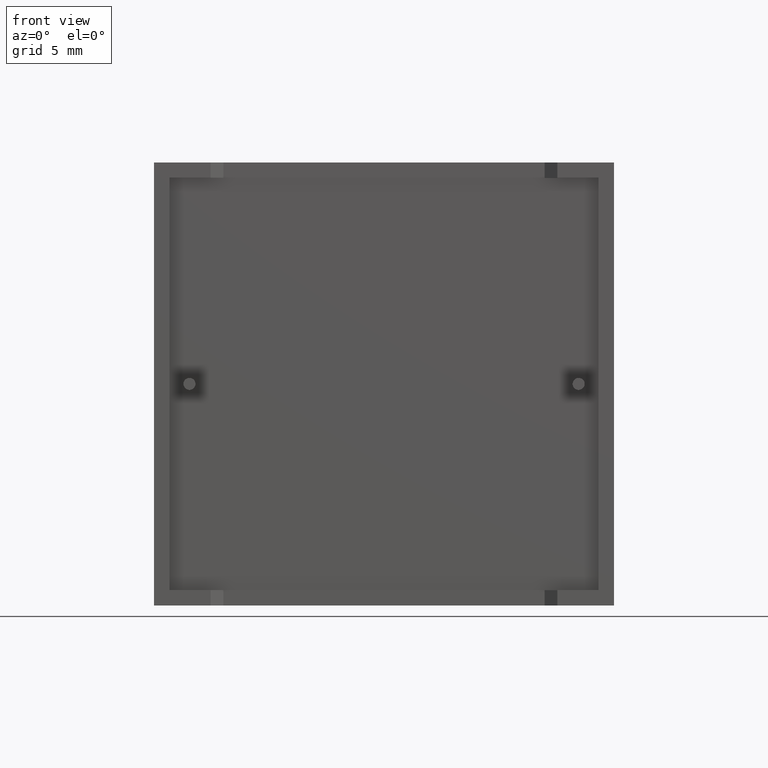
[diagram: clean part render]
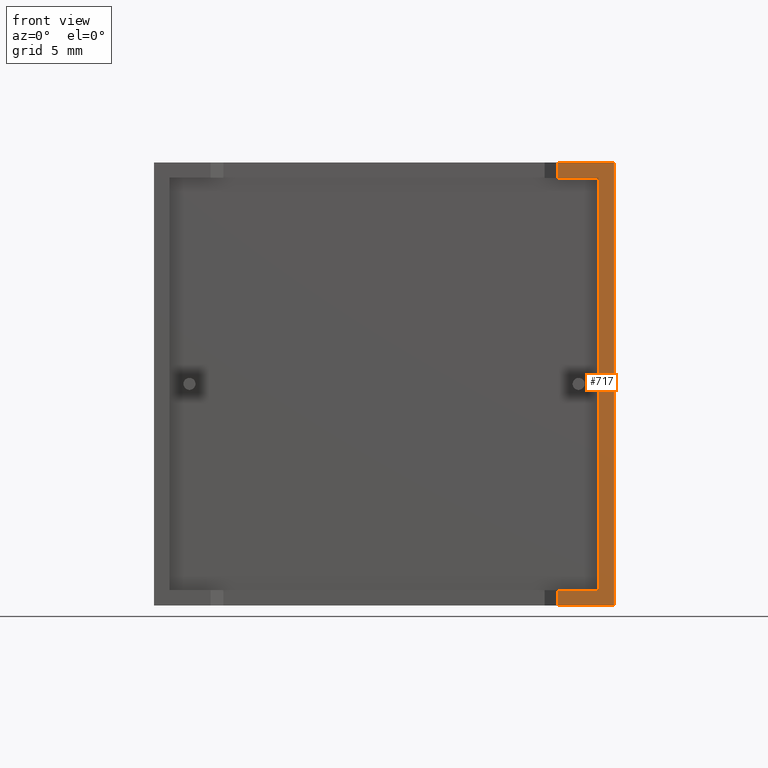
[diagram: same view with one face highlighted and labeled with its STEP entity id]
A machine part, front view. The second image highlights one B-rep face of the part: STEP entity #717.
In plain terms, the highlighted planar face has unit normal (0, 1, 0).
Its self-contained STEP definition (entity closure, byte-faithful):
#74 = EDGE_CURVE ( 'NONE', #218, #2173, #2022, .T. ) ;
#218 = VERTEX_POINT ( 'NONE', #541 ) ;
#240 = VECTOR ( 'NONE', #2100, 1000.000000000000000 ) ;
#289 = CARTESIAN_POINT ( 'NONE',  ( 31.41666677500000300, 0.0000000000000000000, 30.21666677500000000 ) ) ;
#290 = ORIENTED_EDGE ( 'NONE', *, *, #2038, .T. ) ;
#331 = CARTESIAN_POINT ( 'NONE',  ( 31.41666677500000300, 0.0000000000000000000, 1.083333224999999200 ) ) ;
#404 = CARTESIAN_POINT ( 'NONE',  ( 0.0000000000000000000, 0.0000000000000000000, 31.30000000000000100 ) ) ;
#426 = DIRECTION ( 'NONE',  ( 0.0000000000000000000, -0.0000000000000000000, 1.000000000000000000 ) ) ;
#452 = CARTESIAN_POINT ( 'NONE',  ( 1.083333225000000100, 0.0000000000000000000, 1.083333225000000100 ) ) ;
#467 = FACE_OUTER_BOUND ( 'NONE', #1999, .T. ) ;
#490 = VERTEX_POINT ( 'NONE', #989 ) ;
#530 = EDGE_CURVE ( 'NONE', #771, #490, #2962, .T. ) ;
#541 = CARTESIAN_POINT ( 'NONE',  ( 31.41666677500000300, 0.0000000000000000000, 30.21666677500000000 ) ) ;
#571 = LINE ( 'NONE', #868, #1425 ) ;
#616 = LINE ( 'NONE', #452, #240 ) ;
#671 = LINE ( 'NONE', #2922, #1749 ) ;
#680 = ORIENTED_EDGE ( 'NONE', *, *, #2563, .F. ) ;
#681 = VERTEX_POINT ( 'NONE', #2718 ) ;
#717 = ADVANCED_FACE ( 'NONE', ( #467 ), #2505, .F. ) ;
#771 = VERTEX_POINT ( 'NONE', #954 ) ;
#803 = EDGE_CURVE ( 'NONE', #490, #2291, #616, .T. ) ;
#868 = CARTESIAN_POINT ( 'NONE',  ( 32.50000000000000000, 0.0000000000000000000, 31.30000000000000100 ) ) ;
#954 = CARTESIAN_POINT ( 'NONE',  ( 28.50000000000000000, 2.449293598294706900E-016, 0.0000000000000000000 ) ) ;
#989 = CARTESIAN_POINT ( 'NONE',  ( 28.50000000000000000, 2.449293598294706900E-016, 1.083333224999999400 ) ) ;
#1002 = CARTESIAN_POINT ( 'NONE',  ( 28.50000000000000000, 2.449293598294706900E-016, 0.0000000000000000000 ) ) ;
#1120 = DIRECTION ( 'NONE',  ( -0.0000000000000000000, -0.0000000000000000000, 1.000000000000000000 ) ) ;
#1259 = DIRECTION ( 'NONE',  ( -0.0000000000000000000, -0.0000000000000000000, 1.000000000000000000 ) ) ;
#1268 = LINE ( 'NONE', #1578, #2688 ) ;
#1291 = CARTESIAN_POINT ( 'NONE',  ( 32.50000000000000000, 0.0000000000000000000, 31.30000000000000100 ) ) ;
#1425 = VECTOR ( 'NONE', #2775, 1000.000000000000000 ) ;
#1540 = EDGE_CURVE ( 'NONE', #2279, #681, #571, .T. ) ;
#1562 = EDGE_CURVE ( 'NONE', #2173, #3028, #1723, .T. ) ;
#1578 = CARTESIAN_POINT ( 'NONE',  ( 31.41666677500000300, 0.0000000000000000000, 1.083333224999999200 ) ) ;
#1592 = DIRECTION ( 'NONE',  ( 0.0000000000000000000, 1.000000000000000000, 0.0000000000000000000 ) ) ;
#1603 = DIRECTION ( 'NONE',  ( 1.000000000000000000, 0.0000000000000000000, 0.0000000000000000000 ) ) ;
#1723 = LINE ( 'NONE', #2080, #2997 ) ;
#1749 = VECTOR ( 'NONE', #1770, 1000.000000000000000 ) ;
#1763 = VECTOR ( 'NONE', #1259, 1000.000000000000000 ) ;
#1770 = DIRECTION ( 'NONE',  ( 1.000000000000000000, 0.0000000000000000000, 0.0000000000000000000 ) ) ;
#1802 = ORIENTED_EDGE ( 'NONE', *, *, #1540, .F. ) ;
#1938 = AXIS2_PLACEMENT_3D ( 'NONE', #404, #1592, #426 ) ;
#1969 = VECTOR ( 'NONE', #1603, 1000.000000000000000 ) ;
#1971 = ORIENTED_EDGE ( 'NONE', *, *, #2343, .F. ) ;
#1990 = ORIENTED_EDGE ( 'NONE', *, *, #74, .F. ) ;
#1999 = EDGE_LOOP ( 'NONE', ( #2625, #290, #1802, #1971, #2826, #1990, #680, #2323 ) ) ;
#2022 = LINE ( 'NONE', #289, #2057 ) ;
#2038 = EDGE_CURVE ( 'NONE', #771, #681, #2370, .T. ) ;
#2057 = VECTOR ( 'NONE', #2468, 1000.000000000000000 ) ;
#2080 = CARTESIAN_POINT ( 'NONE',  ( 28.50000000000000000, 2.449293598294706900E-016, 0.0000000000000000000 ) ) ;
#2100 = DIRECTION ( 'NONE',  ( 1.000000000000000000, 0.0000000000000000000, -2.859434280636139900E-017 ) ) ;
#2172 = CARTESIAN_POINT ( 'NONE',  ( 28.50000000000000000, 2.449293598294706900E-016, 30.21666677500000000 ) ) ;
#2173 = VERTEX_POINT ( 'NONE', #2172 ) ;
#2205 = CARTESIAN_POINT ( 'NONE',  ( 28.50000000000000000, 2.449293598294706900E-016, 31.30000000000000100 ) ) ;
#2279 = VERTEX_POINT ( 'NONE', #1291 ) ;
#2291 = VERTEX_POINT ( 'NONE', #331 ) ;
#2294 = CARTESIAN_POINT ( 'NONE',  ( 0.0000000000000000000, 0.0000000000000000000, 0.0000000000000000000 ) ) ;
#2323 = ORIENTED_EDGE ( 'NONE', *, *, #803, .F. ) ;
#2343 = EDGE_CURVE ( 'NONE', #3028, #2279, #671, .T. ) ;
#2370 = LINE ( 'NONE', #2294, #1969 ) ;
#2468 = DIRECTION ( 'NONE',  ( -1.000000000000000000, 0.0000000000000000000, -1.143773712254456000E-016 ) ) ;
#2505 = PLANE ( 'NONE',  #1938 ) ;
#2563 = EDGE_CURVE ( 'NONE', #2291, #218, #1268, .T. ) ;
#2625 = ORIENTED_EDGE ( 'NONE', *, *, #530, .F. ) ;
#2688 = VECTOR ( 'NONE', #2954, 1000.000000000000000 ) ;
#2718 = CARTESIAN_POINT ( 'NONE',  ( 32.50000000000000000, 0.0000000000000000000, 0.0000000000000000000 ) ) ;
#2775 = DIRECTION ( 'NONE',  ( -0.0000000000000000000, -0.0000000000000000000, -1.000000000000000000 ) ) ;
#2826 = ORIENTED_EDGE ( 'NONE', *, *, #1562, .F. ) ;
#2922 = CARTESIAN_POINT ( 'NONE',  ( 0.0000000000000000000, 0.0000000000000000000, 31.30000000000000100 ) ) ;
#2954 = DIRECTION ( 'NONE',  ( 0.0000000000000000000, 0.0000000000000000000, 1.000000000000000000 ) ) ;
#2962 = LINE ( 'NONE', #1002, #1763 ) ;
#2997 = VECTOR ( 'NONE', #1120, 1000.000000000000000 ) ;
#3028 = VERTEX_POINT ( 'NONE', #2205 ) ;